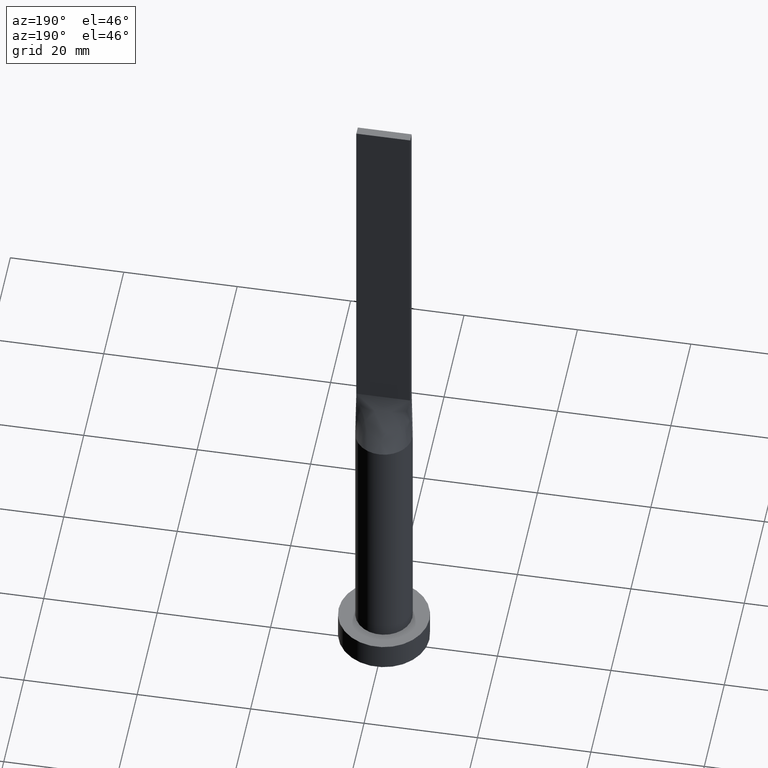
[diagram: clean part render]
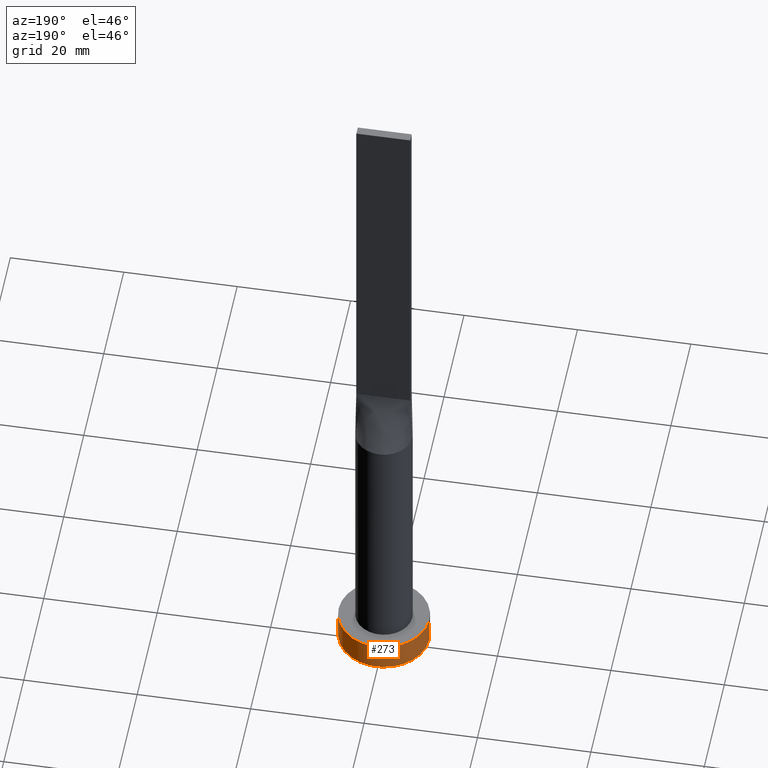
[diagram: same view with one face highlighted and labeled with its STEP entity id]
A machine part, auxiliary view. The second image highlights one B-rep face of the part: STEP entity #273.
In plain terms, the highlighted cylindrical surface (partial cylindrical patch) has radius 8 mm, axis along (-0, -0, -1).
Its self-contained STEP definition (entity closure, byte-faithful):
#20 = DIRECTION ( 'NONE',  ( -1.000000000000000000, 0.000000000000000000, 0.000000000000000000 ) ) ;
#33 = DIRECTION ( 'NONE',  ( 1.000000000000000000, 0.000000000000000000, 0.000000000000000000 ) ) ;
#39 = ORIENTED_EDGE ( 'NONE', *, *, #318, .T. ) ;
#59 = CARTESIAN_POINT ( 'NONE',  ( 8.000000000000000000, 9.797174393178825657E-16, 5.000000000000000000 ) ) ;
#73 = EDGE_CURVE ( 'NONE', #294, #548, #405, .T. ) ;
#81 = CARTESIAN_POINT ( 'NONE',  ( 0.000000000000000000, 0.000000000000000000, 5.000000000000000000 ) ) ;
#108 = AXIS2_PLACEMENT_3D ( 'NONE', #81, #560, #568 ) ;
#115 = DIRECTION ( 'NONE',  ( -0.000000000000000000, -0.000000000000000000, -1.000000000000000000 ) ) ;
#140 = VERTEX_POINT ( 'NONE', #326 ) ;
#163 = CARTESIAN_POINT ( 'NONE',  ( -8.000000000000000000, 0.000000000000000000, 5.000000000000000000 ) ) ;
#176 = CARTESIAN_POINT ( 'NONE',  ( 0.000000000000000000, 0.000000000000000000, 0.000000000000000000 ) ) ;
#208 = CIRCLE ( 'NONE', #570, 8.000000000000000000 ) ;
#214 = CARTESIAN_POINT ( 'NONE',  ( 8.000000000000000000, 9.797174393178825657E-16, 0.000000000000000000 ) ) ;
#229 = DIRECTION ( 'NONE',  ( 0.000000000000000000, 0.000000000000000000, 1.000000000000000000 ) ) ;
#231 = VECTOR ( 'NONE', #396, 1000.000000000000000 ) ;
#253 = VERTEX_POINT ( 'NONE', #214 ) ;
#262 = EDGE_CURVE ( 'NONE', #294, #253, #300, .T. ) ;
#273 = ADVANCED_FACE ( 'NONE', ( #321 ), #402, .T. ) ;
#294 = VERTEX_POINT ( 'NONE', #543 ) ;
#300 = LINE ( 'NONE', #59, #231 ) ;
#312 = CARTESIAN_POINT ( 'NONE',  ( 0.000000000000000000, 0.000000000000000000, 5.000000000000000000 ) ) ;
#313 = LINE ( 'NONE', #401, #541 ) ;
#316 = ORIENTED_EDGE ( 'NONE', *, *, #262, .T. ) ;
#318 = EDGE_CURVE ( 'NONE', #253, #140, #208, .T. ) ;
#321 = FACE_OUTER_BOUND ( 'NONE', #546, .T. ) ;
#324 = AXIS2_PLACEMENT_3D ( 'NONE', #312, #115, #20 ) ;
#326 = CARTESIAN_POINT ( 'NONE',  ( -8.000000000000000000, 0.000000000000000000, 0.000000000000000000 ) ) ;
#331 = ORIENTED_EDGE ( 'NONE', *, *, #73, .F. ) ;
#396 = DIRECTION ( 'NONE',  ( -0.000000000000000000, -0.000000000000000000, -1.000000000000000000 ) ) ;
#401 = CARTESIAN_POINT ( 'NONE',  ( -8.000000000000000000, 0.000000000000000000, 5.000000000000000000 ) ) ;
#402 = CYLINDRICAL_SURFACE ( 'NONE', #324, 8.000000000000000000 ) ;
#405 = CIRCLE ( 'NONE', #108, 8.000000000000000000 ) ;
#535 = DIRECTION ( 'NONE',  ( -0.000000000000000000, -0.000000000000000000, -1.000000000000000000 ) ) ;
#541 = VECTOR ( 'NONE', #535, 1000.000000000000000 ) ;
#543 = CARTESIAN_POINT ( 'NONE',  ( 8.000000000000000000, 9.797174393178825657E-16, 5.000000000000000000 ) ) ;
#546 = EDGE_LOOP ( 'NONE', ( #331, #316, #39, #572 ) ) ;
#548 = VERTEX_POINT ( 'NONE', #163 ) ;
#560 = DIRECTION ( 'NONE',  ( 0.000000000000000000, 0.000000000000000000, 1.000000000000000000 ) ) ;
#568 = DIRECTION ( 'NONE',  ( 1.000000000000000000, 0.000000000000000000, 0.000000000000000000 ) ) ;
#570 = AXIS2_PLACEMENT_3D ( 'NONE', #176, #229, #33 ) ;
#572 = ORIENTED_EDGE ( 'NONE', *, *, #587, .F. ) ;
#587 = EDGE_CURVE ( 'NONE', #548, #140, #313, .T. ) ;